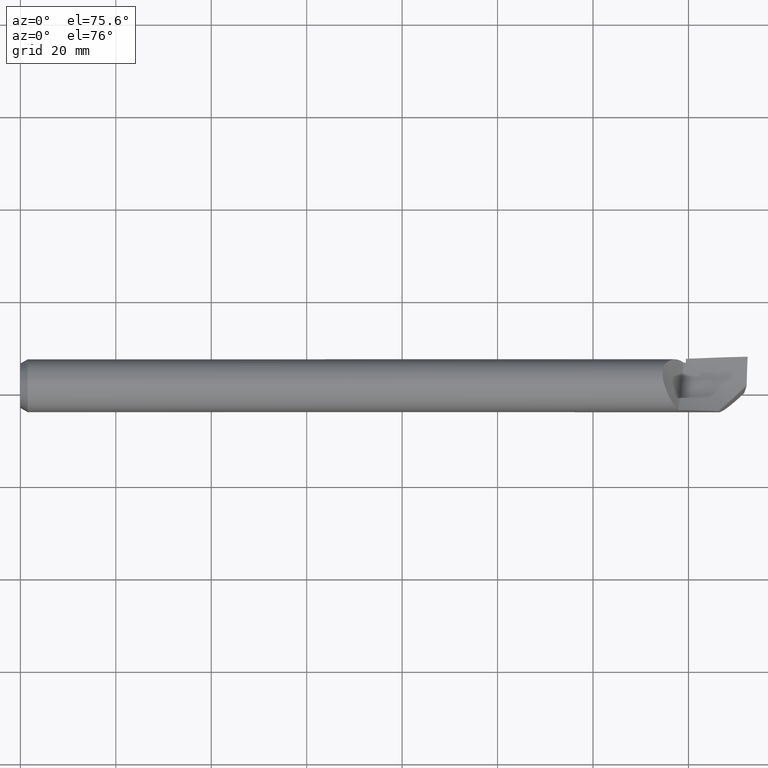
[diagram: clean part render]
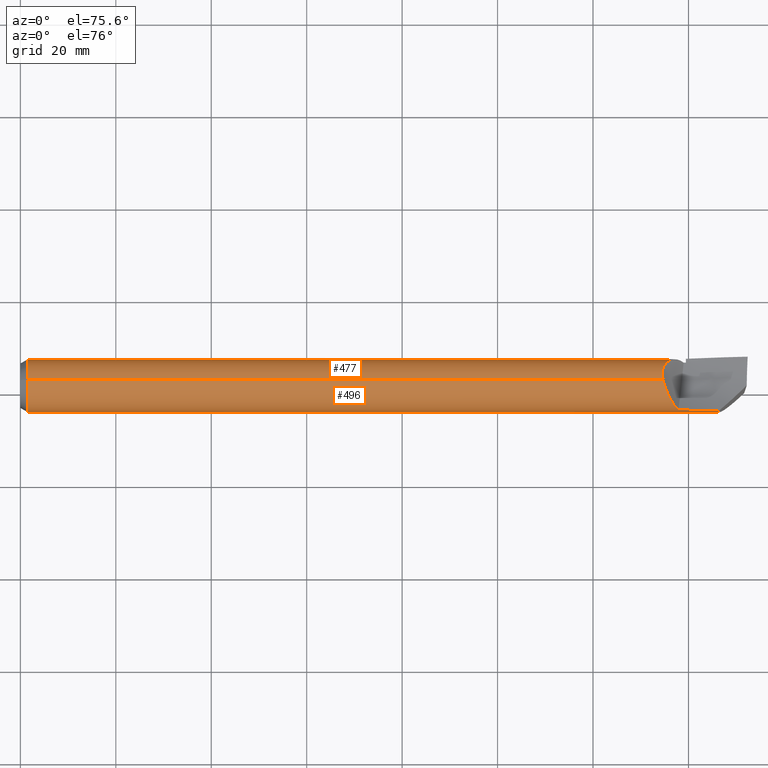
[diagram: same view with one multi-face feature highlighted, each face labeled with its STEP entity id]
A machine part, auxiliary view. The highlighted faces form ONE feature: a constant-radius fillet chain: 2 tangent blend faces with common blend radius 5.5537 mm. The faces share edges in the B-rep.
Their STEP definitions:
[1] entity #496 (Cylinder):
#3 = EDGE_LOOP ( 'NONE', ( #457, #512, #584, #263, #252, #460, #350, #228 ) ) ;
#9 = CARTESIAN_POINT ( 'NONE',  ( 5.301726246469367965, -1.097537071317447814E-06, 0.2186592195482874035 ) ) ;
#25 = DIRECTION ( 'NONE',  ( -1.000000000000000000, -0.000000000000000000, -0.000000000000000000 ) ) ;
#39 = CARTESIAN_POINT ( 'NONE',  ( 5.323851703196349483, -0.07692295761513294472, 0.2046733460412991090 ) ) ;
#41 = CARTESIAN_POINT ( 'NONE',  ( 5.354642086951858282, -0.1405036324967387229, 0.1675373154708120482 ) ) ;
#51 = CARTESIAN_POINT ( 'NONE',  ( 5.333018530376169686, -0.09912489433541260553, 0.1953142997923010271 ) ) ;
#58 = EDGE_CURVE ( 'NONE', #630, #614, #230, .T. ) ;
#80 = CIRCLE ( 'NONE', #591, 0.2186499999999999555 ) ;
#81 = CARTESIAN_POINT ( 'NONE',  ( 5.971039849105131303, -0.007324286134753231307, -0.2185272919628490351 ) ) ;
#91 = AXIS2_PLACEMENT_3D ( 'NONE', #364, #531, #135 ) ;
#95 = CARTESIAN_POINT ( 'NONE',  ( 5.317997827412834333, -0.06112191080452025749, 0.2099624141757666929 ) ) ;
#105 = VECTOR ( 'NONE', #25, 39.37007874015748143 ) ;
#106 = CARTESIAN_POINT ( 'NONE',  ( 0.000000000000000000, 0.000000000000000000, 0.2186499999999999555 ) ) ;
#118 = CARTESIAN_POINT ( 'NONE',  ( 5.971039849105131303, -0.007324286134753231307, -0.2185272919628490351 ) ) ;
#121 = VERTEX_POINT ( 'NONE', #533 ) ;
#126 = EDGE_CURVE ( 'NONE', #630, #121, #649, .T. ) ;
#135 = DIRECTION ( 'NONE',  ( 0.000000000000000000, 0.000000000000000000, 1.000000000000000000 ) ) ;
#145 = CARTESIAN_POINT ( 'NONE',  ( 5.367185262199287266, -0.1604174294540079426, 0.1490964670851400165 ) ) ;
#153 = CARTESIAN_POINT ( 'NONE',  ( 5.353799381708173044, -0.1390748737465828111, 0.1687191142472262428 ) ) ;
#163 = CARTESIAN_POINT ( 'NONE',  ( 5.314552961290850419, -0.05098192065812419405, 0.2127387826740966270 ) ) ;
#168 = CARTESIAN_POINT ( 'NONE',  ( 5.490000000000001101, 0.000000000000000000, -0.2186499999999999277 ) ) ;
#182 = VECTOR ( 'NONE', #680, 39.37007874015748143 ) ;
#206 = VECTOR ( 'NONE', #595, 39.37007874015748143 ) ;
#207 = CARTESIAN_POINT ( 'NONE',  ( 5.759944547215720689, -0.2184195880241632803, 0.01003524127038001382 ) ) ;
#220 = CARTESIAN_POINT ( 'NONE',  ( 5.383913653070428573, -0.1816157460054630135, 0.1217936843185418311 ) ) ;
#228 = ORIENTED_EDGE ( 'NONE', *, *, #269, .F. ) ;
#229 = CARTESIAN_POINT ( 'NONE',  ( 5.593749806622911436, -0.2177474673098442060, 0.02466412019502455671 ) ) ;
#230 = LINE ( 'NONE', #475, #206 ) ;
#235 = VERTEX_POINT ( 'NONE', #483 ) ;
#236 = CARTESIAN_POINT ( 'NONE',  ( 0.05999999999999999778, 0.000000000000000000, 0.2186499999999999555 ) ) ;
#249 = CARTESIAN_POINT ( 'NONE',  ( 5.971067388946768695, -0.002441999748249901094, -0.2186499999999999555 ) ) ;
#252 = ORIENTED_EDGE ( 'NONE', *, *, #331, .F. ) ;
#258 = DIRECTION ( 'NONE',  ( -1.000000000000000000, -0.000000000000000000, -0.000000000000000000 ) ) ;
#263 = ORIENTED_EDGE ( 'NONE', *, *, #615, .T. ) ;
#266 = CARTESIAN_POINT ( 'NONE',  ( 5.328253007059424284, -0.08813334624505253512, 0.2004187933001320143 ) ) ;
#269 = EDGE_CURVE ( 'NONE', #121, #372, #80, .T. ) ;
#276 = CARTESIAN_POINT ( 'NONE',  ( 5.348460418300624575, -0.1297214670295155914, 0.1760449541647363114 ) ) ;
#296 = CARTESIAN_POINT ( 'NONE',  ( 5.759944547215720689, -0.2184195880241632803, 0.01003524127038001382 ) ) ;
#314 = CYLINDRICAL_SURFACE ( 'NONE', #91, 0.2186499999999999555 ) ;
#316 = CARTESIAN_POINT ( 'NONE',  ( 0.05999999999999999778, 0.000000000000000000, 0.000000000000000000 ) ) ;
#317 = VERTEX_POINT ( 'NONE', #9 ) ;
#328 = CARTESIAN_POINT ( 'NONE',  ( 5.301726246469367965, -1.097537071317447814E-06, 0.2186592195482874035 ) ) ;
#331 = EDGE_CURVE ( 'NONE', #705, #576, #631, .T. ) ;
#332 = CARTESIAN_POINT ( 'NONE',  ( 5.323595237030366079, -0.07626520320020291344, 0.2049193257915876698 ) ) ;
#340 = CARTESIAN_POINT ( 'NONE',  ( 5.841766508389280688, -0.1365976268506039482, -0.2141944924827762775 ) ) ;
#350 = ORIENTED_EDGE ( 'NONE', *, *, #583, .T. ) ;
#364 = CARTESIAN_POINT ( 'NONE',  ( 0.000000000000000000, 0.000000000000000000, 0.000000000000000000 ) ) ;
#370 = CARTESIAN_POINT ( 'NONE',  ( 5.428289023255820744, -0.2151305318689210322, 0.03907271116514884901 ) ) ;
#372 = VERTEX_POINT ( 'NONE', #236 ) ;
#377 = LINE ( 'NONE', #106, #182 ) ;
#382 = CARTESIAN_POINT ( 'NONE',  ( 5.353176744031411083, -0.1380131013251689742, 0.1695889247472530670 ) ) ;
#386 = CARTESIAN_POINT ( 'NONE',  ( 5.385492893635559497, -0.1833816485035568433, 0.1191191383568872691 ) ) ;
#397 = CARTESIAN_POINT ( 'NONE',  ( 5.323214188873268249, -0.07528118465658978353, 0.2052819717783619935 ) ) ;
#417 = CARTESIAN_POINT ( 'NONE',  ( 5.971051103806576776, -0.004883656855269938313, -0.2186090934945077446 ) ) ;
#418 = CARTESIAN_POINT ( 'NONE',  ( 5.759944547215720689, -0.2184195880241632803, 0.01003524127038001382 ) ) ;
#431 = CARTESIAN_POINT ( 'NONE',  ( 5.321872108503046483, -0.07177740625180767386, 0.2065433747930592034 ) ) ;
#436 = CARTESIAN_POINT ( 'NONE',  ( 5.350387775362747789, -0.1331895126695880893, 0.1734492682114094908 ) ) ;
#441 = CARTESIAN_POINT ( 'NONE',  ( 5.355320374578507625, -0.1416402864811667495, 0.1665775413964856733 ) ) ;
#453 = CARTESIAN_POINT ( 'NONE',  ( 5.379225412555443953, -0.1761750767513403093, 0.1296564606168214562 ) ) ;
#457 = ORIENTED_EDGE ( 'NONE', *, *, #126, .F. ) ;
#460 = ORIENTED_EDGE ( 'NONE', *, *, #557, .T. ) ;
#466 = EDGE_CURVE ( 'NONE', #614, #235, #473, .T. ) ;
#473 =( BOUNDED_CURVE ( )  B_SPLINE_CURVE ( 3, ( #593, #249, #417, #81 ),
 .UNSPECIFIED., .F., .T. ) 
 B_SPLINE_CURVE_WITH_KNOTS ( ( 4, 4 ),
 ( 6.212232684215155842, 6.245736716187252568 ),
 .UNSPECIFIED. ) 
 CURVE ( )  GEOMETRIC_REPRESENTATION_ITEM ( )  RATIONAL_B_SPLINE_CURVE ( ( 1.000000000000000000, 0.9999064588410366827, 0.9999064588410366827, 1.000000000000000000 ) ) 
 REPRESENTATION_ITEM ( '' )  );
#475 = CARTESIAN_POINT ( 'NONE',  ( 5.400000000000000355, 0.000000000000000000, -0.2186499999999999277 ) ) ;
#483 = CARTESIAN_POINT ( 'NONE',  ( 5.971039849105131303, -0.007324286134753231307, -0.2185272919628490351 ) ) ;
#495 = CARTESIAN_POINT ( 'NONE',  ( 5.306805682398024970, -0.02460528017656519670, 0.2176696562880553742 ) ) ;
#496 = ADVANCED_FACE ( 'NONE', ( #662 ), #314, .T. ) ;
#501 = CARTESIAN_POINT ( 'NONE',  ( 5.341101494872652289, -0.1157947440727595534, 0.1855823246303779095 ) ) ;
#510 = CARTESIAN_POINT ( 'NONE',  ( 5.404165058258996623, -0.2022209992731618111, 0.08673448802873288954 ) ) ;
#512 = ORIENTED_EDGE ( 'NONE', *, *, #58, .T. ) ;
#520 = CARTESIAN_POINT ( 'NONE',  ( 5.428289023255820744, -0.2151305318689210322, 0.03907271116514884901 ) ) ;
#531 = DIRECTION ( 'NONE',  ( -1.000000000000000000, -0.000000000000000000, -0.000000000000000000 ) ) ;
#533 = CARTESIAN_POINT ( 'NONE',  ( 0.05999999999999999778, 2.677690226335687467E-17, -0.2186499999999999555 ) ) ;
#539 = CARTESIAN_POINT ( 'NONE',  ( 5.428289023255820744, -0.2151305318689210322, 0.03907271116514884901 ) ) ;
#547 = CARTESIAN_POINT ( 'NONE',  ( 5.361462074103652498, -0.1518093568957043782, 0.1578105731485251184 ) ) ;
#550 = CARTESIAN_POINT ( 'NONE',  ( 5.416417109839364308, -0.2107593895042234877, 0.06321933073818039595 ) ) ;
#557 = EDGE_CURVE ( 'NONE', #705, #317, #728, .T. ) ;
#563 = CARTESIAN_POINT ( 'NONE',  ( 5.319797351407710373, -0.06622082069837728624, 0.2084352783557121835 ) ) ;
#576 = VERTEX_POINT ( 'NONE', #207 ) ;
#583 = EDGE_CURVE ( 'NONE', #317, #372, #377, .T. ) ;
#584 = ORIENTED_EDGE ( 'NONE', *, *, #466, .T. ) ;
#591 = AXIS2_PLACEMENT_3D ( 'NONE', #316, #258, #688 ) ;
#593 = CARTESIAN_POINT ( 'NONE',  ( 5.971088699955716450, 0.000000000000000000, -0.2186499999999999277 ) ) ;
#594 = CARTESIAN_POINT ( 'NONE',  ( 5.754008038543237724, -0.2243560966966460513, -0.1191743854450955098 ) ) ;
#595 = DIRECTION ( 'NONE',  ( 1.000000000000000000, -0.000000000000000000, -0.000000000000000000 ) ) ;
#607 = CARTESIAN_POINT ( 'NONE',  ( 5.323018997531307583, -0.07477532232089666164, 0.2054669831661162238 ) ) ;
#611 = CARTESIAN_POINT ( 'NONE',  ( 5.388684362219426482, -0.1868110008452356086, 0.1136655096938851833 ) ) ;
#614 = VERTEX_POINT ( 'NONE', #627 ) ;
#615 = EDGE_CURVE ( 'NONE', #235, #576, #733, .T. ) ;
#616 = CARTESIAN_POINT ( 'NONE',  ( 5.312461959699881220, -0.04429957942379789820, 0.2142190208831991349 ) ) ;
#620 = CARTESIAN_POINT ( 'NONE',  ( 5.343951596291702799, -0.1213797972024721339, 0.1819929034652232880 ) ) ;
#624 = CARTESIAN_POINT ( 'NONE',  ( 5.322690167765286695, -0.07391856379628214402, 0.2057767623563798165 ) ) ;
#627 = CARTESIAN_POINT ( 'NONE',  ( 5.971088699955716450, 0.000000000000000000, -0.2186499999999999277 ) ) ;
#630 = VERTEX_POINT ( 'NONE', #168 ) ;
#631 =( BOUNDED_CURVE ( )  B_SPLINE_CURVE ( 2, ( #520, #229, #296 ),
 .UNSPECIFIED., .F., .F. ) 
 B_SPLINE_CURVE_WITH_KNOTS ( ( 3, 3 ),
 ( 0.5593075405032371661, 0.8145556036202803440 ),
 .UNSPECIFIED. ) 
 CURVE ( )  GEOMETRIC_REPRESENTATION_ITEM ( )  RATIONAL_B_SPLINE_CURVE ( ( 0.9744143277570932460, 0.9711624498025578367, 0.9722633163224428943 ) ) 
 REPRESENTATION_ITEM ( '' )  );
#649 = LINE ( 'NONE', #708, #105 ) ;
#662 = FACE_OUTER_BOUND ( 'NONE', #3, .T. ) ;
#666 = CARTESIAN_POINT ( 'NONE',  ( 5.353579253872610799, -0.1387005322206082691, 0.1690271631899464277 ) ) ;
#670 = CARTESIAN_POINT ( 'NONE',  ( 5.303857134158199038, -0.01195368764396109035, 0.2186499833073598797 ) ) ;
#676 = CARTESIAN_POINT ( 'NONE',  ( 5.390320083459168465, -0.1884932922161005608, 0.1108494801515019640 ) ) ;
#680 = DIRECTION ( 'NONE',  ( -1.000000000000000000, -0.000000000000000000, -0.000000000000000000 ) ) ;
#686 = CARTESIAN_POINT ( 'NONE',  ( 5.376165893785994854, -0.1723573828809910058, 0.1346836162415121219 ) ) ;
#688 = DIRECTION ( 'NONE',  ( 0.000000000000000000, 0.000000000000000000, 1.000000000000000000 ) ) ;
#705 = VERTEX_POINT ( 'NONE', #370 ) ;
#708 = CARTESIAN_POINT ( 'NONE',  ( 0.000000000000000000, 2.677690226335687467E-17, -0.2186499999999999555 ) ) ;
#722 = CARTESIAN_POINT ( 'NONE',  ( 5.352574804815553478, -0.1369811847766369828, 0.1704269595549098015 ) ) ;
#728 = B_SPLINE_CURVE_WITH_KNOTS ( 'NONE', 3,
 ( #539, #550, #510, #676, #611, #386, #220, #453, #686, #145, #547, #441, #41, #153, #666, #382, #722, #436, #276, #620, #501, #51, #266, #39, #332, #397, #607, #624, #431, #563, #95, #163, #616, #495, #670, #328 ),
 .UNSPECIFIED., .F., .F.,
 ( 4, 2, 2, 2, 2, 2, 2, 2, 1, 1, 2, 2, 2, 2, 2, 1, 1, 2, 2, 4 ),
 ( 0.000000000000000000, 0.2421414659143002468, 0.2724091491535899356, 0.3026768323928796245, 0.3632121988714589467, 0.4842829318286177021, 0.4994167734482627408, 0.5032002338531760266, 0.5069836942580893124, 0.5145506150679159951, 0.5448182983072229479, 0.6053536647858370756, 0.7264243977430649979, 0.7339913185528926798, 0.7377747789578066318, 0.7415582393627203617, 0.7566920809823723948, 0.7869597642216793476, 0.8474951307002906997, 0.9685658636575108504 ),
 .UNSPECIFIED. ) ;
#733 =( BOUNDED_CURVE ( )  B_SPLINE_CURVE ( 3, ( #118, #340, #594, #418 ),
 .UNSPECIFIED., .F., .T. ) 
 B_SPLINE_CURVE_WITH_KNOTS ( ( 4, 4 ),
 ( 4.745893012356785512, 6.329097805607813321 ),
 .UNSPECIFIED. ) 
 CURVE ( )  GEOMETRIC_REPRESENTATION_ITEM ( )  RATIONAL_B_SPLINE_CURVE ( ( 1.000000000000000000, 0.8018040965532735598, 0.8018040965532735598, 1.000000000000000000 ) ) 
 REPRESENTATION_ITEM ( '' )  );
[2] entity #477 (Cylinder):
#6 = CARTESIAN_POINT ( 'NONE',  ( 5.393751563188459386, 0.2097834464265109777, 0.06168193126618237015 ) ) ;
#7 = VERTEX_POINT ( 'NONE', #640 ) ;
#9 = CARTESIAN_POINT ( 'NONE',  ( 5.301726246469367965, -1.097537071317447814E-06, 0.2186592195482874035 ) ) ;
#15 = CARTESIAN_POINT ( 'NONE',  ( 5.301726246469367965, -1.097537071317447814E-06, 0.2186592195482874035 ) ) ;
#16 = DIRECTION ( 'NONE',  ( -1.000000000000000000, -0.000000000000000000, -0.000000000000000000 ) ) ;
#20 =( BOUNDED_CURVE ( )  B_SPLINE_CURVE ( 2, ( #286, #75, #179 ),
 .UNSPECIFIED., .F., .T. ) 
 B_SPLINE_CURVE_WITH_KNOTS ( ( 3, 3 ),
 ( 0.3930158259847691404, 0.4074109194752292273 ),
 .UNSPECIFIED. ) 
 CURVE ( )  GEOMETRIC_REPRESENTATION_ITEM ( )  RATIONAL_B_SPLINE_CURVE ( ( 0.9733513826577548933, 0.9734889251378002761, 0.9736403117979952615 ) ) 
 REPRESENTATION_ITEM ( '' )  );
#21 = DIRECTION ( 'NONE',  ( 0.000000000000000000, 0.000000000000000000, -1.000000000000000000 ) ) ;
#24 = DIRECTION ( 'NONE',  ( 0.000000000000000000, 0.000000000000000000, 1.000000000000000000 ) ) ;
#25 = DIRECTION ( 'NONE',  ( -1.000000000000000000, -0.000000000000000000, -0.000000000000000000 ) ) ;
#33 = CARTESIAN_POINT ( 'NONE',  ( 0.05999999999999999778, 0.000000000000000000, 0.000000000000000000 ) ) ;
#38 = CARTESIAN_POINT ( 'NONE',  ( 5.482495906476938963, 0.1914835127187947128, -0.1055573765428616945 ) ) ;
#40 = CARTESIAN_POINT ( 'NONE',  ( 5.391960524979544367, 0.2090039576888267914, 0.06425115845135193071 ) ) ;
#44 = CARTESIAN_POINT ( 'NONE',  ( 5.395925378028884722, 0.2106676904138148898, 0.05855338454461178621 ) ) ;
#46 = EDGE_CURVE ( 'NONE', #346, #630, #265, .T. ) ;
#49 = CARTESIAN_POINT ( 'NONE',  ( 5.373045229115887444, 0.1987798122955278524, 0.09107372125574716981 ) ) ;
#53 = CARTESIAN_POINT ( 'NONE',  ( 5.327903301790693824, 0.1544032420682446283, 0.1548144573598769780 ) ) ;
#59 = CARTESIAN_POINT ( 'NONE',  ( 5.410943118938225993, 0.2156394942511996315, 0.03669571857654661123 ) ) ;
#60 = VERTEX_POINT ( 'NONE', #536 ) ;
#65 = CARTESIAN_POINT ( 'NONE',  ( 5.301571563392669439, 0.0009007926053264448708, 0.2186486067439287750 ) ) ;
#66 = VERTEX_POINT ( 'NONE', #609 ) ;
#70 = CARTESIAN_POINT ( 'NONE',  ( 5.300000000000000711, 0.01069301138062639031, 0.2183883742501275815 ) ) ;
#72 = EDGE_CURVE ( 'NONE', #66, #60, #554, .T. ) ;
#75 = CARTESIAN_POINT ( 'NONE',  ( 5.480670511054988481, 0.2112596837126563543, -0.05637239902461495256 ) ) ;
#89 = DIRECTION ( 'NONE',  ( 0.000000000000000000, 0.000000000000000000, 1.000000000000000000 ) ) ;
#92 = DIRECTION ( 'NONE',  ( 0.000000000000000000, 0.000000000000000000, 1.000000000000000000 ) ) ;
#93 = CARTESIAN_POINT ( 'NONE',  ( 5.300000000000000711, 0.000000000000000000, 0.000000000000000000 ) ) ;
#97 = CARTESIAN_POINT ( 'NONE',  ( 5.422981224190761118, 0.2178384048208436286, 0.01882239950287517907 ) ) ;
#101 = CARTESIAN_POINT ( 'NONE',  ( 5.423132256118122108, 0.2178578002910109834, 0.01859591843064410319 ) ) ;
#105 = VECTOR ( 'NONE', #25, 39.37007874015748143 ) ;
#106 = CARTESIAN_POINT ( 'NONE',  ( 0.000000000000000000, 0.000000000000000000, 0.2186499999999999555 ) ) ;
#112 = CARTESIAN_POINT ( 'NONE',  ( 5.339809942963882783, 0.1702993353926174069, 0.1377509704733041185 ) ) ;
#116 = CARTESIAN_POINT ( 'NONE',  ( 5.363905207600467406, 0.1924089063709986391, 0.1039229917590410029 ) ) ;
#119 = CIRCLE ( 'NONE', #172, 0.2186499999999999555 ) ;
#120 = CARTESIAN_POINT ( 'NONE',  ( 5.301184492781922053, 0.003146918431384278843, 0.2186305735167796416 ) ) ;
#121 = VERTEX_POINT ( 'NONE', #533 ) ;
#123 = ORIENTED_EDGE ( 'NONE', *, *, #306, .F. ) ;
#126 = EDGE_CURVE ( 'NONE', #630, #121, #649, .T. ) ;
#127 = CIRCLE ( 'NONE', #157, 0.2186499999999999555 ) ;
#132 = CARTESIAN_POINT ( 'NONE',  ( 5.474996901347982892, 0.01471922584789439950, -0.2181539979772590399 ) ) ;
#138 = CARTESIAN_POINT ( 'NONE',  ( 5.482495906476937186, 0.01541270954320097045, -0.2181071841326581995 ) ) ;
#143 = CARTESIAN_POINT ( 'NONE',  ( 0.000000000000000000, 0.000000000000000000, 0.000000000000000000 ) ) ;
#150 = CARTESIAN_POINT ( 'NONE',  ( 5.372283168852959534, 0.1982860555661837831, 0.09214581790529133287 ) ) ;
#155 = CARTESIAN_POINT ( 'NONE',  ( 5.376457864700658007, 0.2009676489907449570, 0.08627223400866519676 ) ) ;
#157 = AXIS2_PLACEMENT_3D ( 'NONE', #33, #718, #89 ) ;
#161 = CARTESIAN_POINT ( 'NONE',  ( 5.315200195965978480, 0.1325952822649145157, 0.1740109497427283214 ) ) ;
#168 = CARTESIAN_POINT ( 'NONE',  ( 5.490000000000001101, 0.000000000000000000, -0.2186499999999999277 ) ) ;
#169 = CARTESIAN_POINT ( 'NONE',  ( 5.420983759668443369, 0.2175622048859018609, 0.02180692788309914962 ) ) ;
#172 = AXIS2_PLACEMENT_3D ( 'NONE', #656, #668, #21 ) ;
#176 = EDGE_CURVE ( 'NONE', #293, #180, #119, .T. ) ;
#179 = CARTESIAN_POINT ( 'NONE',  ( 5.471346566983472215, 0.2110442653468279917, -0.05716765312847500030 ) ) ;
#180 = VERTEX_POINT ( 'NONE', #243 ) ;
#182 = VECTOR ( 'NONE', #680, 39.37007874015748143 ) ;
#193 = CARTESIAN_POINT ( 'NONE',  ( 5.490000000000001101, 0.000000000000000000, 0.000000000000000000 ) ) ;
#205 = EDGE_LOOP ( 'NONE', ( #358, #233, #555, #351, #509, #450, #513, #123, #689, #499, #444, #619 ) ) ;
#208 = CARTESIAN_POINT ( 'NONE',  ( 5.327339098440490694, 0.1535724871066054542, 0.1556396391440466598 ) ) ;
#214 = CARTESIAN_POINT ( 'NONE',  ( 5.373198069281534650, 0.1988781926060893268, 0.09085868690086847110 ) ) ;
#218 = CARTESIAN_POINT ( 'NONE',  ( 5.423203999389651031, 0.2178669501258466701, 0.01848827045659682394 ) ) ;
#222 = CARTESIAN_POINT ( 'NONE',  ( 5.397033353014940360, 0.2111023645173870367, 0.05695621974847463881 ) ) ;
#225 = B_SPLINE_CURVE_WITH_KNOTS ( 'NONE', 3,
 ( #15, #575, #65, #232, #120, #349, #288, #70 ),
 .UNSPECIFIED., .F., .F.,
 ( 4, 2, 1, 1, 4 ),
 ( 0.9685658636575108504, 0.9724951307003227852, 0.9764243977431347199, 0.9842829318287569240, 1.000000000000000000 ),
 .UNSPECIFIED. ) ;
#227 = CARTESIAN_POINT ( 'NONE',  ( 5.417222582560270894, 0.2169486243322618635, 0.02740261093453771543 ) ) ;
#232 = CARTESIAN_POINT ( 'NONE',  ( 5.301415447608443188, 0.001800015976620992272, 0.2186430529444348403 ) ) ;
#233 = ORIENTED_EDGE ( 'NONE', *, *, #126, .T. ) ;
#236 = CARTESIAN_POINT ( 'NONE',  ( 0.05999999999999999778, 0.000000000000000000, 0.2186499999999999555 ) ) ;
#238 = CARTESIAN_POINT ( 'NONE',  ( 5.465102704248059773, 0.2138155167977597859, -0.04696383832082493687 ) ) ;
#239 = CARTESIAN_POINT ( 'NONE',  ( 5.490000000000001101, 0.000000000000000000, 0.000000000000000000 ) ) ;
#240 = EDGE_CURVE ( 'NONE', #180, #60, #692, .T. ) ;
#241 = CYLINDRICAL_SURFACE ( 'NONE', #290, 0.2186499999999999555 ) ;
#243 = CARTESIAN_POINT ( 'NONE',  ( 5.474998967115993764, 0.1911388645456205126, -0.1061779492325103658 ) ) ;
#245 = CARTESIAN_POINT ( 'NONE',  ( 5.490000000000001101, 0.01609851000112820160, -0.2180565533886646701 ) ) ;
#262 = CARTESIAN_POINT ( 'NONE',  ( 5.397994206653936367, 0.2114706548956107601, 0.05556976712593802298 ) ) ;
#265 = CIRCLE ( 'NONE', #327, 0.2186499999999999555 ) ;
#268 = CARTESIAN_POINT ( 'NONE',  ( 5.397833416469516976, 0.2114095307937702561, 0.05580185651004301167 ) ) ;
#274 = CARTESIAN_POINT ( 'NONE',  ( 5.355166375661937650, 0.1853570673493258048, 0.1161901871610538928 ) ) ;
#283 = CARTESIAN_POINT ( 'NONE',  ( 5.312534214554918144, 0.1267698187323551273, 0.1782919693017149532 ) ) ;
#286 = CARTESIAN_POINT ( 'NONE',  ( 5.490000000000002878, 0.2114691027157991898, -0.05557554405431821415 ) ) ;
#288 = CARTESIAN_POINT ( 'NONE',  ( 5.300264159778933504, 0.008933953364436371392, 0.2184745173646364946 ) ) ;
#290 = AXIS2_PLACEMENT_3D ( 'NONE', #143, #307, #92 ) ;
#293 = VERTEX_POINT ( 'NONE', #690 ) ;
#300 = AXIS2_PLACEMENT_3D ( 'NONE', #193, #490, #302 ) ;
#302 = DIRECTION ( 'NONE',  ( 0.000000000000000000, 0.000000000000000000, 1.000000000000000000 ) ) ;
#305 = EDGE_CURVE ( 'NONE', #562, #7, #567, .T. ) ;
#306 = EDGE_CURVE ( 'NONE', #66, #7, #20, .T. ) ;
#307 = DIRECTION ( 'NONE',  ( -1.000000000000000000, -0.000000000000000000, -0.000000000000000000 ) ) ;
#317 = VERTEX_POINT ( 'NONE', #9 ) ;
#320 = CARTESIAN_POINT ( 'NONE',  ( 5.405285100613323124, 0.2142245497771485541, 0.04504311766564184083 ) ) ;
#323 = CARTESIAN_POINT ( 'NONE',  ( 5.300000000000000711, 0.08415770461942120861, 0.2018051120591107528 ) ) ;
#326 = VERTEX_POINT ( 'NONE', #404 ) ;
#327 = AXIS2_PLACEMENT_3D ( 'NONE', #239, #16, #643 ) ;
#329 = CARTESIAN_POINT ( 'NONE',  ( 5.367367877305579960, 0.1949327976827347486, 0.09905738301277887403 ) ) ;
#334 = CARTESIAN_POINT ( 'NONE',  ( 5.373302573659572090, 0.1989452789271062005, 0.09071165374625229927 ) ) ;
#337 = CARTESIAN_POINT ( 'NONE',  ( 5.380078260122174605, 0.2031193701579339372, 0.08117539300899345722 ) ) ;
#344 = CARTESIAN_POINT ( 'NONE',  ( 5.490000000000001101, 0.01609851000112820160, -0.2180565533886646701 ) ) ;
#346 = VERTEX_POINT ( 'NONE', #344 ) ;
#348 = EDGE_CURVE ( 'NONE', #317, #326, #225, .T. ) ;
#349 = CARTESIAN_POINT ( 'NONE',  ( 5.300668130135377965, 0.006275985951900001081, 0.2185726620587430669 ) ) ;
#351 = ORIENTED_EDGE ( 'NONE', *, *, #583, .F. ) ;
#356 = FACE_OUTER_BOUND ( 'NONE', #205, .T. ) ;
#358 = ORIENTED_EDGE ( 'NONE', *, *, #46, .T. ) ;
#372 = VERTEX_POINT ( 'NONE', #236 ) ;
#375 = CARTESIAN_POINT ( 'NONE',  ( 5.489999999999998437, 0.1918135994642089504, -0.1049541116906446137 ) ) ;
#377 = LINE ( 'NONE', #106, #182 ) ;
#384 = CARTESIAN_POINT ( 'NONE',  ( 5.328047902314448692, 0.1546146149302989881, 0.1546032736966542476 ) ) ;
#388 = CARTESIAN_POINT ( 'NONE',  ( 5.386279324233727017, 0.2063497684418835743, 0.07236968066712116954 ) ) ;
#394 = CARTESIAN_POINT ( 'NONE',  ( 5.302117979541469239, 0.09661801112770525279, 0.1966091003016623706 ) ) ;
#402 = CARTESIAN_POINT ( 'NONE',  ( 5.421570427800180170, 0.2176470342228367938, 0.02093183762545664656 ) ) ;
#404 = CARTESIAN_POINT ( 'NONE',  ( 5.300000000000000711, 0.01069301138062639031, 0.2183883742501275815 ) ) ;
#429 = CARTESIAN_POINT ( 'NONE',  ( 5.474998967115993764, 0.1911388645456205126, -0.1061779492325103658 ) ) ;
#438 = CARTESIAN_POINT ( 'NONE',  ( 5.422648978798818575, 0.2177951105102036988, 0.01932009123605772302 ) ) ;
#443 = CARTESIAN_POINT ( 'NONE',  ( 5.433059707276100880, 0.2191156137562941530, 0.003690420362170297904 ) ) ;
#444 = ORIENTED_EDGE ( 'NONE', *, *, #176, .F. ) ;
#448 = CARTESIAN_POINT ( 'NONE',  ( 5.326556738207087527, 0.1524046853324500239, 0.1567870027476325201 ) ) ;
#450 = ORIENTED_EDGE ( 'NONE', *, *, #634, .T. ) ;
#455 = CARTESIAN_POINT ( 'NONE',  ( 5.325018574646904312, 0.1500525979030663815, 0.1590538414227918029 ) ) ;
#459 = CARTESIAN_POINT ( 'NONE',  ( 5.418947809790066295, 0.2172440735159769654, 0.02483878854211619969 ) ) ;
#470 = EDGE_CURVE ( 'NONE', #346, #293, #523, .T. ) ;
#477 = ADVANCED_FACE ( 'NONE', ( #356 ), #241, .T. ) ;
#480 = AXIS2_PLACEMENT_3D ( 'NONE', #93, #541, #24 ) ;
#490 = DIRECTION ( 'NONE',  ( -1.000000000000000000, -0.000000000000000000, -0.000000000000000000 ) ) ;
#493 = CARTESIAN_POINT ( 'NONE',  ( 5.423234999096580466, 0.2178708968474347696, 0.01844174950760434431 ) ) ;
#498 = CARTESIAN_POINT ( 'NONE',  ( 5.423233938071987836, 0.2178707556036081350, 0.01844333415305287466 ) ) ;
#499 = ORIENTED_EDGE ( 'NONE', *, *, #240, .F. ) ;
#503 = CARTESIAN_POINT ( 'NONE',  ( 5.372816176018894829, 0.1986320615790215238, 0.09139597521367277821 ) ) ;
#507 = CARTESIAN_POINT ( 'NONE',  ( 5.351115144369523513, 0.1816527304700205347, 0.1218706312577485934 ) ) ;
#509 = ORIENTED_EDGE ( 'NONE', *, *, #348, .T. ) ;
#511 = CARTESIAN_POINT ( 'NONE',  ( 5.371222954762587598, 0.1975890853420696203, 0.09363716917474670942 ) ) ;
#513 = ORIENTED_EDGE ( 'NONE', *, *, #305, .T. ) ;
#523 =( BOUNDED_CURVE ( )  B_SPLINE_CURVE ( 2, ( #245, #138, #132 ),
 .UNSPECIFIED., .F., .T. ) 
 B_SPLINE_CURVE_WITH_KNOTS ( ( 3, 3 ),
 ( 0.4075927071582991501, 0.4196108242066922678 ),
 .UNSPECIFIED. ) 
 CURVE ( )  GEOMETRIC_REPRESENTATION_ITEM ( )  RATIONAL_B_SPLINE_CURVE ( ( 0.9974221972044265971, 0.9975518224474398954, 0.9976913329914359752 ) ) 
 REPRESENTATION_ITEM ( '' )  );
#533 = CARTESIAN_POINT ( 'NONE',  ( 0.05999999999999999778, 2.677690226335687467E-17, -0.2186499999999999555 ) ) ;
#536 = CARTESIAN_POINT ( 'NONE',  ( 5.489999999999998437, 0.1918135994642089504, -0.1049541116906446137 ) ) ;
#541 = DIRECTION ( 'NONE',  ( -1.000000000000000000, 0.000000000000000000, 0.000000000000000000 ) ) ;
#549 = CARTESIAN_POINT ( 'NONE',  ( 5.423253717541536290, 0.2178732670025561868, 0.01841364297473846792 ) ) ;
#553 = CARTESIAN_POINT ( 'NONE',  ( 5.305507494335683916, 0.1089507565844239911, 0.1901071228948381375 ) ) ;
#554 = CIRCLE ( 'NONE', #300, 0.2186499999999999555 ) ;
#555 = ORIENTED_EDGE ( 'NONE', *, *, #709, .F. ) ;
#560 = CARTESIAN_POINT ( 'NONE',  ( 5.369125727547873872, 0.1961757832042421712, 0.09658652870678993696 ) ) ;
#562 = VERTEX_POINT ( 'NONE', #323 ) ;
#564 = CARTESIAN_POINT ( 'NONE',  ( 5.322048475153072111, 0.1452844629865166215, 0.1634757013975004225 ) ) ;
#567 = B_SPLINE_CURVE_WITH_KNOTS ( 'NONE', 3,
 ( #622, #394, #553, #283, #161, #725, #564, #455, #448, #208, #678, #53, #384, #625, #112, #507, #274, #569, #116, #329, #560, #511, #150, #503, #49, #214, #334, #155, #337, #388, #683, #40, #6, #44, #222, #613, #268, #262, #618, #320, #59, #227, #459, #169, #402, #732, #438, #97, #101, #218, #498, #549, #493, #443, #673, #632, #238, #628 ),
 .UNSPECIFIED., .F., .F.,
 ( 4, 2, 2, 1, 1, 1, 1, 2, 2, 2, 2, 2, 1, 1, 1, 1, 2, 2, 2, 2, 1, 1, 1, 1, 2, 2, 2, 2, 2, 1, 1, 1, 1, 2, 2, 2, 4 ),
 ( 0.000000000000000000, 0.1249999999998774591, 0.1874999999998176736, 0.2187499999997860878, 0.2343749999997719324, 0.2421874999997648825, 0.2460937499997613298, 0.2480468749997613298, 0.2499999999997613020, 0.3749999999997518652, 0.4374999999997471467, 0.4687499999997424838, 0.4843749999997402633, 0.4921874999997412625, 0.4960937499997417621, 0.4980468749997419287, 0.4990234374997400413, 0.4999999999997380984, 0.5624999999993800515, 0.5937499999992035260, 0.6093749999991152633, 0.6171874999990710764, 0.6210937499990469846, 0.6230468749990347721, 0.6240234374990287769, 0.6249999999990226707, 0.6874999999986342036, 0.7187499999984424681, 0.7343749999983466559, 0.7421874999982986942, 0.7460937499982812637, 0.7480468749982726040, 0.7490234374982682741, 0.7495117187482742693, 0.7499999999982802645, 0.8749999999991401323, 1.000000000000000000 ),
 .UNSPECIFIED. ) ;
#569 = CARTESIAN_POINT ( 'NONE',  ( 5.361667468836358807, 0.1906757896823386977, 0.1070652166029300717 ) ) ;
#575 = CARTESIAN_POINT ( 'NONE',  ( 5.301661883401521891, 0.0003876334332870394060, 0.2186500005415279169 ) ) ;
#583 = EDGE_CURVE ( 'NONE', #317, #372, #377, .T. ) ;
#609 = CARTESIAN_POINT ( 'NONE',  ( 5.490000000000002878, 0.2114691027157991898, -0.05557554405431821415 ) ) ;
#613 = CARTESIAN_POINT ( 'NONE',  ( 5.397592607399428033, 0.2113176932515422324, 0.05614940170787149215 ) ) ;
#618 = CARTESIAN_POINT ( 'NONE',  ( 5.398043971051625256, 0.2114895497985064821, 0.05549793209714443121 ) ) ;
#619 = ORIENTED_EDGE ( 'NONE', *, *, #470, .F. ) ;
#622 = CARTESIAN_POINT ( 'NONE',  ( 5.300000000000000711, 0.08415770461942120861, 0.2018051120591107528 ) ) ;
#625 = CARTESIAN_POINT ( 'NONE',  ( 5.333404465322259647, 0.1624201294929293327, 0.1467850412336485499 ) ) ;
#628 = CARTESIAN_POINT ( 'NONE',  ( 5.471346566983472215, 0.2110442653468279917, -0.05716765312847500030 ) ) ;
#630 = VERTEX_POINT ( 'NONE', #168 ) ;
#632 = CARTESIAN_POINT ( 'NONE',  ( 5.457979820255085990, 0.2161354240335456312, -0.03543154529881645948 ) ) ;
#634 = EDGE_CURVE ( 'NONE', #326, #562, #641, .T. ) ;
#640 = CARTESIAN_POINT ( 'NONE',  ( 5.471346566983472215, 0.2110442653468279917, -0.05716765312847500030 ) ) ;
#641 = CIRCLE ( 'NONE', #480, 0.2186499999999999555 ) ;
#643 = DIRECTION ( 'NONE',  ( 0.000000000000000000, 0.000000000000000000, 1.000000000000000000 ) ) ;
#649 = LINE ( 'NONE', #708, #105 ) ;
#656 = CARTESIAN_POINT ( 'NONE',  ( 5.474999999999999645, 0.000000000000000000, 0.000000000000000000 ) ) ;
#668 = DIRECTION ( 'NONE',  ( 1.000000000000000000, 0.000000000000000000, 0.000000000000000000 ) ) ;
#673 = CARTESIAN_POINT ( 'NONE',  ( 5.441958321769108764, 0.2187870391100778522, -0.01010680176257232506 ) ) ;
#678 = CARTESIAN_POINT ( 'NONE',  ( 5.327677241066231417, 0.1540711808845482145, 0.1551449276955547962 ) ) ;
#680 = DIRECTION ( 'NONE',  ( -1.000000000000000000, -0.000000000000000000, -0.000000000000000000 ) ) ;
#683 = CARTESIAN_POINT ( 'NONE',  ( 5.388474757434125628, 0.2074262837235434642, 0.06924111559163767526 ) ) ;
#689 = ORIENTED_EDGE ( 'NONE', *, *, #72, .T. ) ;
#690 = CARTESIAN_POINT ( 'NONE',  ( 5.474996901347982892, 0.01471922584789439950, -0.2181539979772590399 ) ) ;
#692 =( BOUNDED_CURVE ( )  B_SPLINE_CURVE ( 2, ( #429, #38, #375 ),
 .UNSPECIFIED., .F., .T. ) 
 B_SPLINE_CURVE_WITH_KNOTS ( ( 3, 3 ),
 ( 0.5803891757933098416, 0.5924072928417043471 ),
 .UNSPECIFIED. ) 
 CURVE ( )  GEOMETRIC_REPRESENTATION_ITEM ( )  RATIONAL_B_SPLINE_CURVE ( ( 0.9976913329914360862, 0.9975518224474398954, 0.9974221972044265971 ) ) 
 REPRESENTATION_ITEM ( '' )  );
#708 = CARTESIAN_POINT ( 'NONE',  ( 0.000000000000000000, 2.677690226335687467E-17, -0.2186499999999999555 ) ) ;
#709 = EDGE_CURVE ( 'NONE', #372, #121, #127, .T. ) ;
#718 = DIRECTION ( 'NONE',  ( -1.000000000000000000, -0.000000000000000000, -0.000000000000000000 ) ) ;
#725 = CARTESIAN_POINT ( 'NONE',  ( 5.319684780089543708, 0.1410945944728179691, 0.1670733735903800476 ) ) ;
#732 = CARTESIAN_POINT ( 'NONE',  ( 5.422312457256199814, 0.2177498473727765560, 0.01982332407106036226 ) ) ;